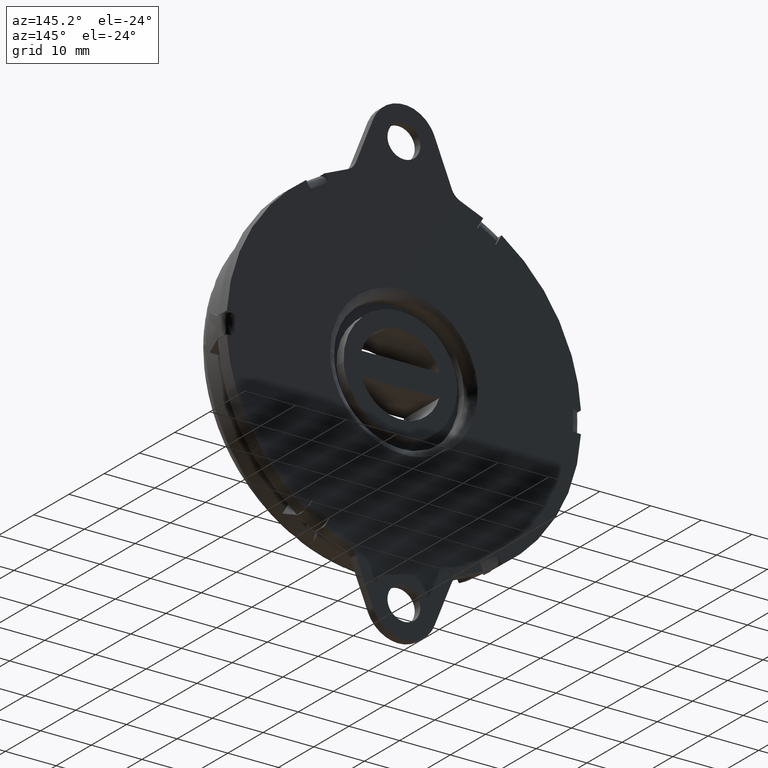
[diagram: clean part render]
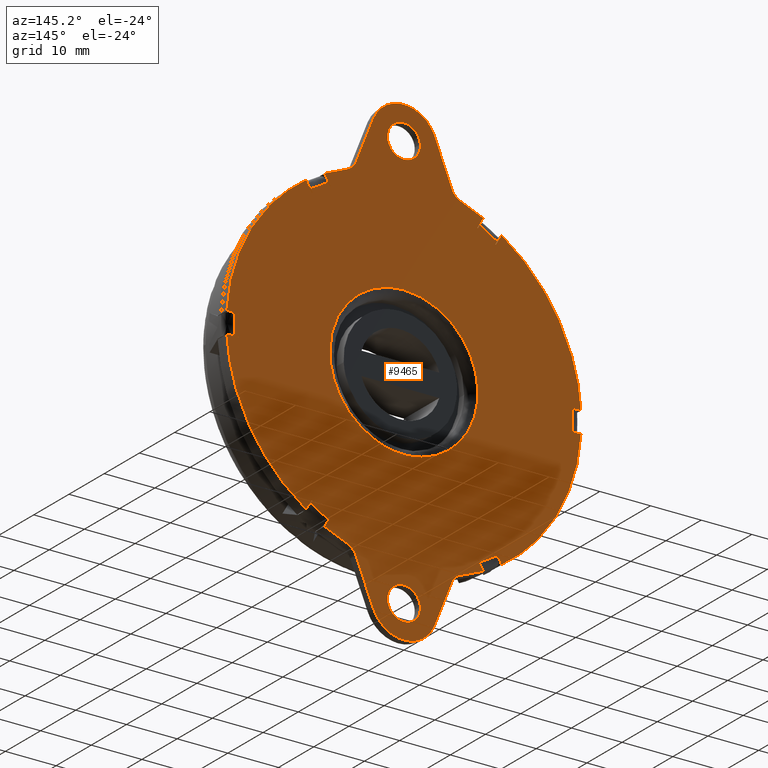
[diagram: same view with one face highlighted and labeled with its STEP entity id]
A machine part, auxiliary view. The second image highlights one B-rep face of the part: STEP entity #9465.
In plain terms, the highlighted face is a freeform B-spline surface patch.
Its self-contained STEP definition (entity closure, byte-faithful):
#2044=CARTESIAN_POINT('',(-3.239981334623022,-3.469447E-018,41.254992061238028));
#2045=VERTEX_POINT('',#2044);
#2051=CARTESIAN_POINT('',(0.0,0.0,44.250000000000007));
#2052=VERTEX_POINT('',#2051);
#2053=CARTESIAN_POINT('',(0.0,0.0,44.250000000000007));
#2054=CARTESIAN_POINT('',(-3.004269097661231,0.0,44.250000000000000));
#2055=CARTESIAN_POINT('',(-3.239981334623022,-3.469447E-018,41.254992061238028));
#2063=(BOUNDED_CURVE()B_SPLINE_CURVE(2,(#2053,#2054,#2055),.UNSPECIFIED.,.F.,.U.)B_SPLINE_CURVE_WITH_KNOTS((3,3),(0.0,0.236331300619801),.UNSPECIFIED.)CURVE()GEOMETRIC_REPRESENTATION_ITEM()RATIONAL_B_SPLINE_CURVE((1.0,0.723120658620388,0.969723356144756))REPRESENTATION_ITEM(''));
#2064=EDGE_CURVE('',#2052,#2045,#2063,.T.);
#2066=CARTESIAN_POINT('',(3.239981334623022,-3.469447E-018,40.745007938761972));
#2067=VERTEX_POINT('',#2066);
#2068=CARTESIAN_POINT('',(3.239981334623022,-3.469447E-018,40.745007938761972));
#2069=CARTESIAN_POINT('',(3.250000000000000,0.0,40.872307152101968));
#2070=CARTESIAN_POINT('',(3.250000000000000,0.0,41.0));
#2071=CARTESIAN_POINT('',(3.250000000000000,0.0,44.250000000000007));
#2072=CARTESIAN_POINT('',(0.0,0.0,44.250000000000007));
#2080=(BOUNDED_CURVE()B_SPLINE_CURVE(2,(#2068,#2069,#2070,#2071,#2072),.UNSPECIFIED.,.F.,.U.)B_SPLINE_CURVE_WITH_KNOTS((3,2,3),(0.736331300619801,0.750000000000000,1.0),.UNSPECIFIED.)CURVE()GEOMETRIC_REPRESENTATION_ITEM()RATIONAL_B_SPLINE_CURVE((0.969723356144756,0.983986122566160,1.0,0.707106781186547,1.0))REPRESENTATION_ITEM(''));
#2081=EDGE_CURVE('',#2067,#2052,#2080,.T.);
#2157=CARTESIAN_POINT('',(0.0,0.0,37.750000000000000));
#2158=VERTEX_POINT('',#2157);
#2159=CARTESIAN_POINT('',(0.0,0.0,37.750000000000000));
#2160=CARTESIAN_POINT('',(3.004269097661238,0.0,37.750000000000000));
#2161=CARTESIAN_POINT('',(3.239981334623022,-3.469447E-018,40.745007938761972));
#2169=(BOUNDED_CURVE()B_SPLINE_CURVE(2,(#2159,#2160,#2161),.UNSPECIFIED.,.F.,.U.)B_SPLINE_CURVE_WITH_KNOTS((3,3),(0.500000000000000,0.736331300619801),.UNSPECIFIED.)CURVE()GEOMETRIC_REPRESENTATION_ITEM()RATIONAL_B_SPLINE_CURVE((1.0,0.723120658620387,0.969723356144756))REPRESENTATION_ITEM(''));
#2170=EDGE_CURVE('',#2158,#2067,#2169,.T.);
#2172=CARTESIAN_POINT('',(-3.239981334623022,-3.469447E-018,41.254992061238028));
#2173=CARTESIAN_POINT('',(-3.250000000000000,0.0,41.127692847898025));
#2174=CARTESIAN_POINT('',(-3.250000000000000,0.0,41.0));
#2175=CARTESIAN_POINT('',(-3.250000000000000,0.0,37.750000000000007));
#2176=CARTESIAN_POINT('',(0.0,0.0,37.750000000000000));
#2184=(BOUNDED_CURVE()B_SPLINE_CURVE(2,(#2172,#2173,#2174,#2175,#2176),.UNSPECIFIED.,.F.,.U.)B_SPLINE_CURVE_WITH_KNOTS((3,2,3),(0.236331300619801,0.250000000000000,0.500000000000000),.UNSPECIFIED.)CURVE()GEOMETRIC_REPRESENTATION_ITEM()RATIONAL_B_SPLINE_CURVE((0.969723356144756,0.983986122566160,1.0,0.707106781186547,1.0))REPRESENTATION_ITEM(''));
#2185=EDGE_CURVE('',#2045,#2158,#2184,.T.);
#2226=CARTESIAN_POINT('',(-3.239981334623022,-3.469447E-018,-40.745007938761972));
#2227=VERTEX_POINT('',#2226);
#2233=CARTESIAN_POINT('',(0.0,0.0,-37.750000000000000));
#2234=VERTEX_POINT('',#2233);
#2235=CARTESIAN_POINT('',(0.0,0.0,-37.750000000000000));
#2236=CARTESIAN_POINT('',(-3.004269097661227,0.0,-37.750000000000007));
#2237=CARTESIAN_POINT('',(-3.239981334623022,-3.469447E-018,-40.745007938761972));
#2245=(BOUNDED_CURVE()B_SPLINE_CURVE(2,(#2235,#2236,#2237),.UNSPECIFIED.,.F.,.U.)B_SPLINE_CURVE_WITH_KNOTS((3,3),(0.0,0.236331300619800),.UNSPECIFIED.)CURVE()GEOMETRIC_REPRESENTATION_ITEM()RATIONAL_B_SPLINE_CURVE((1.0,0.723120658620388,0.969723356144755))REPRESENTATION_ITEM(''));
#2246=EDGE_CURVE('',#2234,#2227,#2245,.T.);
#2248=CARTESIAN_POINT('',(3.239981334623022,-3.469447E-018,-41.254992061238028));
#2249=VERTEX_POINT('',#2248);
#2250=CARTESIAN_POINT('',(3.239981334623022,-3.469447E-018,-41.254992061238035));
#2251=CARTESIAN_POINT('',(3.250000000000000,0.0,-41.127692847898032));
#2252=CARTESIAN_POINT('',(3.250000000000000,0.0,-41.0));
#2253=CARTESIAN_POINT('',(3.250000000000000,0.0,-37.750000000000007));
#2254=CARTESIAN_POINT('',(0.0,0.0,-37.750000000000000));
#2262=(BOUNDED_CURVE()B_SPLINE_CURVE(2,(#2250,#2251,#2252,#2253,#2254),.UNSPECIFIED.,.F.,.U.)B_SPLINE_CURVE_WITH_KNOTS((3,2,3),(0.736331300619801,0.750000000000000,1.0),.UNSPECIFIED.)CURVE()GEOMETRIC_REPRESENTATION_ITEM()RATIONAL_B_SPLINE_CURVE((0.969723356144756,0.983986122566160,1.0,0.707106781186547,1.0))REPRESENTATION_ITEM(''));
#2263=EDGE_CURVE('',#2249,#2234,#2262,.T.);
#2339=CARTESIAN_POINT('',(0.0,0.0,-44.250000000000007));
#2340=VERTEX_POINT('',#2339);
#2341=CARTESIAN_POINT('',(0.0,0.0,-44.250000000000007));
#2342=CARTESIAN_POINT('',(3.004269097661238,0.0,-44.250000000000000));
#2343=CARTESIAN_POINT('',(3.239981334623022,-3.469447E-018,-41.254992061238035));
#2351=(BOUNDED_CURVE()B_SPLINE_CURVE(2,(#2341,#2342,#2343),.UNSPECIFIED.,.F.,.U.)B_SPLINE_CURVE_WITH_KNOTS((3,3),(0.500000000000000,0.736331300619801),.UNSPECIFIED.)CURVE()GEOMETRIC_REPRESENTATION_ITEM()RATIONAL_B_SPLINE_CURVE((1.0,0.723120658620387,0.969723356144756))REPRESENTATION_ITEM(''));
#2352=EDGE_CURVE('',#2340,#2249,#2351,.T.);
#2354=CARTESIAN_POINT('',(-3.239981334623022,-3.469447E-018,-40.745007938761965));
#2355=CARTESIAN_POINT('',(-3.250000000000000,0.0,-40.872307152101975));
#2356=CARTESIAN_POINT('',(-3.250000000000000,0.0,-41.0));
#2357=CARTESIAN_POINT('',(-3.250000000000000,0.0,-44.250000000000007));
#2358=CARTESIAN_POINT('',(0.0,0.0,-44.250000000000007));
#2366=(BOUNDED_CURVE()B_SPLINE_CURVE(2,(#2354,#2355,#2356,#2357,#2358),.UNSPECIFIED.,.F.,.U.)B_SPLINE_CURVE_WITH_KNOTS((3,2,3),(0.236331300619800,0.250000000000000,0.500000000000000),.UNSPECIFIED.)CURVE()GEOMETRIC_REPRESENTATION_ITEM()RATIONAL_B_SPLINE_CURVE((0.969723356144755,0.983986122566159,1.0,0.707106781186547,1.0))REPRESENTATION_ITEM(''));
#2367=EDGE_CURVE('',#2227,#2340,#2366,.T.);
#2476=CARTESIAN_POINT('',(-14.497596722151600,0.0,29.310574110410400));
#2477=VERTEX_POINT('',#2476);
#2483=CARTESIAN_POINT('',(-14.587340000607860,0.0,29.266014028334400));
#2484=VERTEX_POINT('',#2483);
#2485=CARTESIAN_POINT('',(-14.497596722151609,0.0,29.310574110410389));
#2486=CARTESIAN_POINT('',(-14.542502495903378,0.0,29.288362815745987));
#2487=CARTESIAN_POINT('',(-14.587340000607870,0.0,29.266014028334411));
#2495=(BOUNDED_CURVE()B_SPLINE_CURVE(2,(#2485,#2486,#2487),.UNSPECIFIED.,.F.,.U.)CURVE()GEOMETRIC_REPRESENTATION_ITEM()QUASI_UNIFORM_CURVE()RATIONAL_B_SPLINE_CURVE((1.0,0.999998826386876,1.0))REPRESENTATION_ITEM(''));
#2496=EDGE_CURVE('',#2477,#2484,#2495,.T.);
#2640=CARTESIAN_POINT('',(-18.051441615745450,0.0,27.266014028334499));
#2641=VERTEX_POINT('',#2640);
#2647=CARTESIAN_POINT('',(-18.134903418046100,0.0,27.210574110410501));
#2648=VERTEX_POINT('',#2647);
#2649=CARTESIAN_POINT('',(-18.051441615745460,0.0,27.266014028334499));
#2650=CARTESIAN_POINT('',(-18.093214985740161,0.0,27.238358003923729));
#2651=CARTESIAN_POINT('',(-18.134903418046079,0.0,27.210574110410491));
#2659=(BOUNDED_CURVE()B_SPLINE_CURVE(2,(#2649,#2650,#2651),.UNSPECIFIED.,.F.,.U.)CURVE()GEOMETRIC_REPRESENTATION_ITEM()QUASI_UNIFORM_CURVE()RATIONAL_B_SPLINE_CURVE((1.0,0.999998826386876,1.0))REPRESENTATION_ITEM(''));
#2660=EDGE_CURVE('',#2641,#2648,#2659,.T.);
#2684=CARTESIAN_POINT('',(-32.632500140197699,0.0,2.099999999999910));
#2685=VERTEX_POINT('',#2684);
#2691=CARTESIAN_POINT('',(-32.638781616353299,0.0,1.999999999999905));
#2692=VERTEX_POINT('',#2691);
#2693=CARTESIAN_POINT('',(-32.632500140197678,0.0,2.099999999999905));
#2694=CARTESIAN_POINT('',(-32.635717481643226,0.0,2.050004811822229));
#2695=CARTESIAN_POINT('',(-32.638781616353292,0.0,1.999999999999899));
#2703=(BOUNDED_CURVE()B_SPLINE_CURVE(2,(#2693,#2694,#2695),.UNSPECIFIED.,.F.,.U.)CURVE()GEOMETRIC_REPRESENTATION_ITEM()QUASI_UNIFORM_CURVE()RATIONAL_B_SPLINE_CURVE((1.0,0.999998826386876,1.0))REPRESENTATION_ITEM(''));
#2704=EDGE_CURVE('',#2685,#2692,#2703,.T.);
#2848=CARTESIAN_POINT('',(-32.638781616353299,0.0,-1.999999999999885));
#2849=VERTEX_POINT('',#2848);
#2855=CARTESIAN_POINT('',(-32.632500140197699,0.0,-2.099999999999885));
#2856=VERTEX_POINT('',#2855);
#2857=CARTESIAN_POINT('',(-32.638781616353292,0.0,-1.999999999999894));
#2858=CARTESIAN_POINT('',(-32.635717481643226,0.0,-2.050004811822230));
#2859=CARTESIAN_POINT('',(-32.632500140197678,0.0,-2.099999999999901));
#2867=(BOUNDED_CURVE()B_SPLINE_CURVE(2,(#2857,#2858,#2859),.UNSPECIFIED.,.F.,.U.)CURVE()GEOMETRIC_REPRESENTATION_ITEM()QUASI_UNIFORM_CURVE()RATIONAL_B_SPLINE_CURVE((1.0,0.999998826386876,1.0))REPRESENTATION_ITEM(''));
#2868=EDGE_CURVE('',#2849,#2856,#2867,.T.);
#3137=CARTESIAN_POINT('',(-18.134903418046100,0.0,-27.210574110410501));
#3138=VERTEX_POINT('',#3137);
#3144=CARTESIAN_POINT('',(-18.051441615745450,0.0,-27.266014028334549));
#3145=VERTEX_POINT('',#3144);
#3146=CARTESIAN_POINT('',(-18.134903418046090,0.0,-27.210574110410491));
#3147=CARTESIAN_POINT('',(-18.093214985740364,0.0,-27.238358003923590));
#3148=CARTESIAN_POINT('',(-18.051441615745428,0.0,-27.266014028334521));
#3156=(BOUNDED_CURVE()B_SPLINE_CURVE(2,(#3146,#3147,#3148),.UNSPECIFIED.,.F.,.U.)CURVE()GEOMETRIC_REPRESENTATION_ITEM()QUASI_UNIFORM_CURVE()RATIONAL_B_SPLINE_CURVE((1.0,0.999998826386876,1.0))REPRESENTATION_ITEM(''));
#3157=EDGE_CURVE('',#3138,#3145,#3156,.T.);
#3301=CARTESIAN_POINT('',(-14.587340000607860,0.0,-29.266014028334400));
#3302=VERTEX_POINT('',#3301);
#3308=CARTESIAN_POINT('',(-14.497596722151600,0.0,-29.310574110410400));
#3309=VERTEX_POINT('',#3308);
#3310=CARTESIAN_POINT('',(-14.587340000607870,0.0,-29.266014028334411));
#3311=CARTESIAN_POINT('',(-14.542502495903136,0.0,-29.288362815746105));
#3312=CARTESIAN_POINT('',(-14.497596722151600,0.0,-29.310574110410400));
#3320=(BOUNDED_CURVE()B_SPLINE_CURVE(2,(#3310,#3311,#3312),.UNSPECIFIED.,.F.,.U.)CURVE()GEOMETRIC_REPRESENTATION_ITEM()QUASI_UNIFORM_CURVE()RATIONAL_B_SPLINE_CURVE((1.0,0.999998826386876,1.0))REPRESENTATION_ITEM(''));
#3321=EDGE_CURVE('',#3302,#3309,#3320,.T.);
#3345=CARTESIAN_POINT('',(14.497596722151600,0.0,-29.310574110410400));
#3346=VERTEX_POINT('',#3345);
#3352=CARTESIAN_POINT('',(14.587340000607860,0.0,-29.266014028334450));
#3353=VERTEX_POINT('',#3352);
#3354=CARTESIAN_POINT('',(14.497596722151590,0.0,-29.310574110410400));
#3355=CARTESIAN_POINT('',(14.542502495903577,0.0,-29.288362815745884));
#3356=CARTESIAN_POINT('',(14.587340000607840,0.0,-29.266014028334428));
#3364=(BOUNDED_CURVE()B_SPLINE_CURVE(2,(#3354,#3355,#3356),.UNSPECIFIED.,.F.,.U.)CURVE()GEOMETRIC_REPRESENTATION_ITEM()QUASI_UNIFORM_CURVE()RATIONAL_B_SPLINE_CURVE((1.0,0.999998826386876,1.0))REPRESENTATION_ITEM(''));
#3365=EDGE_CURVE('',#3346,#3353,#3364,.T.);
#3509=CARTESIAN_POINT('',(18.051441615745450,0.0,-27.266014028334549));
#3510=VERTEX_POINT('',#3509);
#3516=CARTESIAN_POINT('',(18.134903418046051,0.0,-27.210574110410501));
#3517=VERTEX_POINT('',#3516);
#3518=CARTESIAN_POINT('',(18.051441615745421,0.0,-27.266014028334531));
#3519=CARTESIAN_POINT('',(18.093214985739287,0.0,-27.238358003924304));
#3520=CARTESIAN_POINT('',(18.134903418046040,0.0,-27.210574110410509));
#3528=(BOUNDED_CURVE()B_SPLINE_CURVE(2,(#3518,#3519,#3520),.UNSPECIFIED.,.F.,.U.)CURVE()GEOMETRIC_REPRESENTATION_ITEM()QUASI_UNIFORM_CURVE()RATIONAL_B_SPLINE_CURVE((1.0,0.999998826386876,1.0))REPRESENTATION_ITEM(''));
#3529=EDGE_CURVE('',#3510,#3517,#3528,.T.);
#3553=CARTESIAN_POINT('',(32.632500140197699,0.0,-2.099999999999910));
#3554=VERTEX_POINT('',#3553);
#3560=CARTESIAN_POINT('',(32.638781616353299,0.0,-1.999999999999905));
#3561=VERTEX_POINT('',#3560);
#3562=CARTESIAN_POINT('',(32.632500140197678,0.0,-2.099999999999909));
#3563=CARTESIAN_POINT('',(32.635717481643226,0.0,-2.050004811822254));
#3564=CARTESIAN_POINT('',(32.638781616353292,0.0,-1.999999999999902));
#3572=(BOUNDED_CURVE()B_SPLINE_CURVE(2,(#3562,#3563,#3564),.UNSPECIFIED.,.F.,.U.)CURVE()GEOMETRIC_REPRESENTATION_ITEM()QUASI_UNIFORM_CURVE()RATIONAL_B_SPLINE_CURVE((1.0,0.999998826386876,1.0))REPRESENTATION_ITEM(''));
#3573=EDGE_CURVE('',#3554,#3561,#3572,.T.);
#3717=CARTESIAN_POINT('',(32.638781616353299,0.0,1.999999999999885));
#3718=VERTEX_POINT('',#3717);
#3724=CARTESIAN_POINT('',(32.632500140197699,0.0,2.099999999999885));
#3725=VERTEX_POINT('',#3724);
#3726=CARTESIAN_POINT('',(32.638781616353292,0.0,1.999999999999890));
#3727=CARTESIAN_POINT('',(32.635717481643276,0.0,2.050004811821609));
#3728=CARTESIAN_POINT('',(32.632500140197692,0.0,2.099999999999868));
#3736=(BOUNDED_CURVE()B_SPLINE_CURVE(2,(#3726,#3727,#3728),.UNSPECIFIED.,.F.,.U.)CURVE()GEOMETRIC_REPRESENTATION_ITEM()QUASI_UNIFORM_CURVE()RATIONAL_B_SPLINE_CURVE((1.0,0.999998826386876,1.0))REPRESENTATION_ITEM(''));
#3737=EDGE_CURVE('',#3718,#3725,#3736,.T.);
#3761=CARTESIAN_POINT('',(18.134903418046051,0.0,27.210574110410501));
#3762=VERTEX_POINT('',#3761);
#3768=CARTESIAN_POINT('',(18.051441615745400,0.0,27.266014028334549));
#3769=VERTEX_POINT('',#3768);
#3770=CARTESIAN_POINT('',(18.134903418046068,0.0,27.210574110410501));
#3771=CARTESIAN_POINT('',(18.093214985740044,0.0,27.238358003923800));
#3772=CARTESIAN_POINT('',(18.051441615745400,0.0,27.266014028334549));
#3780=(BOUNDED_CURVE()B_SPLINE_CURVE(2,(#3770,#3771,#3772),.UNSPECIFIED.,.F.,.U.)CURVE()GEOMETRIC_REPRESENTATION_ITEM()QUASI_UNIFORM_CURVE()RATIONAL_B_SPLINE_CURVE((1.0,0.999998826386876,1.0))REPRESENTATION_ITEM(''));
#3781=EDGE_CURVE('',#3762,#3769,#3780,.T.);
#3925=CARTESIAN_POINT('',(14.587340000607840,0.0,29.266014028334450));
#3926=VERTEX_POINT('',#3925);
#3932=CARTESIAN_POINT('',(14.497596722151600,0.0,29.310574110410400));
#3933=VERTEX_POINT('',#3932);
#3934=CARTESIAN_POINT('',(14.587340000607851,0.0,29.266014028334421));
#3935=CARTESIAN_POINT('',(14.542502495902706,0.0,29.288362815746318));
#3936=CARTESIAN_POINT('',(14.497596722151620,0.0,29.310574110410389));
#3944=(BOUNDED_CURVE()B_SPLINE_CURVE(2,(#3934,#3935,#3936),.UNSPECIFIED.,.F.,.U.)CURVE()GEOMETRIC_REPRESENTATION_ITEM()QUASI_UNIFORM_CURVE()RATIONAL_B_SPLINE_CURVE((1.0,0.999998826386876,1.0))REPRESENTATION_ITEM(''));
#3945=EDGE_CURVE('',#3926,#3933,#3944,.T.);
#4549=CARTESIAN_POINT('',(5.158208712719345,-3.168183E-016,-13.658436324283031));
#4550=VERTEX_POINT('',#4549);
#4564=CARTESIAN_POINT('',(0.0,0.0,-14.600000000000000));
#4565=VERTEX_POINT('',#4564);
#4566=CARTESIAN_POINT('',(0.0,0.0,-14.600000000000000));
#4567=CARTESIAN_POINT('',(2.665039436288066,0.0,-14.600000000000003));
#4568=CARTESIAN_POINT('',(5.158208712719346,-3.168183E-016,-13.658436324283024));
#4576=(BOUNDED_CURVE()B_SPLINE_CURVE(2,(#4566,#4567,#4568),.UNSPECIFIED.,.F.,.U.)B_SPLINE_CURVE_WITH_KNOTS((3,3),(0.500000000000000,0.560000000002436),.UNSPECIFIED.)CURVE()GEOMETRIC_REPRESENTATION_ITEM()RATIONAL_B_SPLINE_CURVE((1.0,0.929705627481918,0.893152553773884))REPRESENTATION_ITEM(''));
#4577=EDGE_CURVE('',#4565,#4550,#4576,.T.);
#4579=CARTESIAN_POINT('',(0.0,0.0,14.600000000000000));
#4580=VERTEX_POINT('',#4579);
#4581=CARTESIAN_POINT('',(0.0,0.0,14.600000000000000));
#4582=CARTESIAN_POINT('',(-14.599999999999994,0.0,14.599999999999994));
#4583=CARTESIAN_POINT('',(-14.600000000000000,0.0,-9.985231E-016));
#4584=CARTESIAN_POINT('',(-14.599999999999994,0.0,-14.599999999999994));
#4585=CARTESIAN_POINT('',(0.0,0.0,-14.600000000000000));
#4593=(BOUNDED_CURVE()B_SPLINE_CURVE(2,(#4581,#4582,#4583,#4584,#4585),.UNSPECIFIED.,.F.,.U.)B_SPLINE_CURVE_WITH_KNOTS((3,2,3),(0.0,0.250000000000000,0.500000000000000),.UNSPECIFIED.)CURVE()GEOMETRIC_REPRESENTATION_ITEM()RATIONAL_B_SPLINE_CURVE((1.0,0.707106781186547,1.0,0.707106781186547,1.0))REPRESENTATION_ITEM(''));
#4594=EDGE_CURVE('',#4580,#4565,#4593,.T.);
#4596=CARTESIAN_POINT('',(14.599999999491461,-2.829671E-016,-8.881784E-016));
#4597=VERTEX_POINT('',#4596);
#4598=CARTESIAN_POINT('',(14.599999999491461,-2.829671E-016,-8.881784E-016));
#4599=CARTESIAN_POINT('',(14.599999999999994,0.0,14.599999999999994));
#4600=CARTESIAN_POINT('',(0.0,0.0,14.600000000000000));
#4608=(BOUNDED_CURVE()B_SPLINE_CURVE(2,(#4598,#4599,#4600),.UNSPECIFIED.,.F.,.U.)B_SPLINE_CURVE_WITH_KNOTS((3,3),(0.750000000000000,1.0),.UNSPECIFIED.)CURVE()GEOMETRIC_REPRESENTATION_ITEM()RATIONAL_B_SPLINE_CURVE((1.0,0.707106781186547,1.0))REPRESENTATION_ITEM(''));
#4609=EDGE_CURVE('',#4597,#4580,#4608,.T.);
#4650=CARTESIAN_POINT('',(5.158208712719345,-3.168183E-016,-13.658436324283025));
#4651=CARTESIAN_POINT('',(14.599999999999987,0.0,-10.092674556187211));
#4652=CARTESIAN_POINT('',(14.599999999491464,-2.829671E-016,-8.881784E-016));
#4660=(BOUNDED_CURVE()B_SPLINE_CURVE(2,(#4650,#4651,#4652),.UNSPECIFIED.,.F.,.U.)B_SPLINE_CURVE_WITH_KNOTS((3,3),(0.560000000002437,0.750000000000000),.UNSPECIFIED.)CURVE()GEOMETRIC_REPRESENTATION_ITEM()RATIONAL_B_SPLINE_CURVE((0.893152553773884,0.777401153704631,1.000000000000000))REPRESENTATION_ITEM(''));
#4661=EDGE_CURVE('',#4550,#4597,#4660,.T.);
#4684=CARTESIAN_POINT('',(-14.937982185799560,0.0,29.873344108364201));
#4685=VERTEX_POINT('',#4684);
#4716=CARTESIAN_POINT('',(-18.402083800937351,-5.798029E-012,27.873344108364201));
#4717=VERTEX_POINT('',#4716);
#4718=CARTESIAN_POINT('',(-18.402083800937351,-5.798029E-012,27.873344108364201));
#4719=CARTESIAN_POINT('',(-16.730020877039561,0.0,28.977246170721088));
#4720=CARTESIAN_POINT('',(-14.937982185799560,0.0,29.873344108364151));
#4728=(BOUNDED_CURVE()B_SPLINE_CURVE(2,(#4718,#4719,#4720),.UNSPECIFIED.,.F.,.U.)CURVE()GEOMETRIC_REPRESENTATION_ITEM()QUASI_UNIFORM_CURVE()RATIONAL_B_SPLINE_CURVE((1.0,0.998205568465190,1.0))REPRESENTATION_ITEM(''));
#4729=EDGE_CURVE('',#4717,#4685,#4728,.T.);
#4794=CARTESIAN_POINT('',(-33.340065986737351,0.0,2.000000000000315));
#4795=VERTEX_POINT('',#4794);
#4826=CARTESIAN_POINT('',(-33.340065986737351,-5.798029E-012,-1.999999999999685));
#4827=VERTEX_POINT('',#4826);
#4828=CARTESIAN_POINT('',(-33.340065986737351,-5.798029E-012,-1.999999999999685));
#4829=CARTESIAN_POINT('',(-33.460041754079583,0.0,2.641116E-013));
#4830=CARTESIAN_POINT('',(-33.340065986737322,0.0,2.000000000000303));
#4838=(BOUNDED_CURVE()B_SPLINE_CURVE(2,(#4828,#4829,#4830),.UNSPECIFIED.,.F.,.U.)CURVE()GEOMETRIC_REPRESENTATION_ITEM()QUASI_UNIFORM_CURVE()RATIONAL_B_SPLINE_CURVE((1.0,0.998205568465190,1.0))REPRESENTATION_ITEM(''));
#4839=EDGE_CURVE('',#4827,#4795,#4838,.T.);
#4904=CARTESIAN_POINT('',(-18.402083800937799,0.0,-27.873344108363849));
#4905=VERTEX_POINT('',#4904);
#4936=CARTESIAN_POINT('',(-14.937982185800060,-5.798029E-012,-29.873344108363948));
#4937=VERTEX_POINT('',#4936);
#4938=CARTESIAN_POINT('',(-14.937982185800060,-5.798029E-012,-29.873344108363948));
#4939=CARTESIAN_POINT('',(-16.730020877040044,0.0,-28.977246170720811));
#4940=CARTESIAN_POINT('',(-18.402083800937799,0.0,-27.873344108363870));
#4948=(BOUNDED_CURVE()B_SPLINE_CURVE(2,(#4938,#4939,#4940),.UNSPECIFIED.,.F.,.U.)CURVE()GEOMETRIC_REPRESENTATION_ITEM()QUASI_UNIFORM_CURVE()RATIONAL_B_SPLINE_CURVE((1.0,0.998205568465190,1.0))REPRESENTATION_ITEM(''));
#4949=EDGE_CURVE('',#4937,#4905,#4948,.T.);
#5014=CARTESIAN_POINT('',(14.937982185799560,0.0,-29.873344108364201));
#5015=VERTEX_POINT('',#5014);
#5046=CARTESIAN_POINT('',(18.402083800937351,-5.798029E-012,-27.873344108364201));
#5047=VERTEX_POINT('',#5046);
#5048=CARTESIAN_POINT('',(18.402083800937351,-5.798029E-012,-27.873344108364201));
#5049=CARTESIAN_POINT('',(16.730020877039571,0.0,-28.977246170721084));
#5050=CARTESIAN_POINT('',(14.937982185799539,0.0,-29.873344108364162));
#5058=(BOUNDED_CURVE()B_SPLINE_CURVE(2,(#5048,#5049,#5050),.UNSPECIFIED.,.F.,.U.)CURVE()GEOMETRIC_REPRESENTATION_ITEM()QUASI_UNIFORM_CURVE()RATIONAL_B_SPLINE_CURVE((1.0,0.998205568465190,1.0))REPRESENTATION_ITEM(''));
#5059=EDGE_CURVE('',#5047,#5015,#5058,.T.);
#5124=CARTESIAN_POINT('',(33.340065986737351,0.0,-2.000000000000315));
#5125=VERTEX_POINT('',#5124);
#5156=CARTESIAN_POINT('',(33.340065986737351,-5.798029E-012,1.999999999999685));
#5157=VERTEX_POINT('',#5156);
#5158=CARTESIAN_POINT('',(33.340065986737351,-5.798029E-012,1.999999999999685));
#5159=CARTESIAN_POINT('',(33.460041754079583,0.0,-2.788568E-013));
#5160=CARTESIAN_POINT('',(33.340065986737322,0.0,-2.000000000000314));
#5168=(BOUNDED_CURVE()B_SPLINE_CURVE(2,(#5158,#5159,#5160),.UNSPECIFIED.,.F.,.U.)CURVE()GEOMETRIC_REPRESENTATION_ITEM()QUASI_UNIFORM_CURVE()RATIONAL_B_SPLINE_CURVE((1.0,0.998205568465190,1.0))REPRESENTATION_ITEM(''));
#5169=EDGE_CURVE('',#5157,#5125,#5168,.T.);
#5234=CARTESIAN_POINT('',(18.402083800937849,0.0,27.873344108363948));
#5235=VERTEX_POINT('',#5234);
#5266=CARTESIAN_POINT('',(14.937982185800060,-5.798029E-012,29.873344108363948));
#5267=VERTEX_POINT('',#5266);
#5268=CARTESIAN_POINT('',(14.937982185800060,-5.798029E-012,29.873344108363948));
#5269=CARTESIAN_POINT('',(16.730020877040040,0.0,28.977246170720811));
#5270=CARTESIAN_POINT('',(18.402083800937849,0.0,27.873344108363948));
#5278=(BOUNDED_CURVE()B_SPLINE_CURVE(2,(#5268,#5269,#5270),.UNSPECIFIED.,.F.,.U.)CURVE()GEOMETRIC_REPRESENTATION_ITEM()QUASI_UNIFORM_CURVE()RATIONAL_B_SPLINE_CURVE((1.0,0.998205568465189,1.0))REPRESENTATION_ITEM(''));
#5279=EDGE_CURVE('',#5267,#5235,#5278,.T.);
#6512=CARTESIAN_POINT('',(18.051441615745400,0.0,27.266014028334549));
#6513=CARTESIAN_POINT('',(18.402083800937849,0.0,27.873344108363948));
#6514=QUASI_UNIFORM_CURVE('',1,(#6512,#6513),.UNSPECIFIED.,.F.,.U.);
#6515=EDGE_CURVE('',#3769,#5235,#6514,.T.);
#6539=CARTESIAN_POINT('',(14.587340000607840,0.0,29.266014028334450));
#6540=CARTESIAN_POINT('',(14.937982185800060,-5.798029E-012,29.873344108363948));
#6541=QUASI_UNIFORM_CURVE('',1,(#6539,#6540),.UNSPECIFIED.,.F.,.U.);
#6542=EDGE_CURVE('',#3926,#5267,#6541,.T.);
#6734=CARTESIAN_POINT('',(-14.587340000607860,0.0,29.266014028334400));
#6735=CARTESIAN_POINT('',(-14.937982185799560,0.0,29.873344108364201));
#6736=QUASI_UNIFORM_CURVE('',1,(#6734,#6735),.UNSPECIFIED.,.F.,.U.);
#6737=EDGE_CURVE('',#2484,#4685,#6736,.T.);
#6761=CARTESIAN_POINT('',(-18.051441615745450,0.0,27.266014028334499));
#6762=CARTESIAN_POINT('',(-18.402083800937351,-5.798029E-012,27.873344108364201));
#6763=QUASI_UNIFORM_CURVE('',1,(#6761,#6762),.UNSPECIFIED.,.F.,.U.);
#6764=EDGE_CURVE('',#2641,#4717,#6763,.T.);
#6956=CARTESIAN_POINT('',(-32.638781616353299,0.0,1.999999999999905));
#6957=CARTESIAN_POINT('',(-33.340065986737351,0.0,2.000000000000315));
#6958=QUASI_UNIFORM_CURVE('',1,(#6956,#6957),.UNSPECIFIED.,.F.,.U.);
#6959=EDGE_CURVE('',#2692,#4795,#6958,.T.);
#6983=CARTESIAN_POINT('',(-32.638781616353299,0.0,-1.999999999999885));
#6984=CARTESIAN_POINT('',(-33.340065986737351,-5.798029E-012,-1.999999999999685));
#6985=QUASI_UNIFORM_CURVE('',1,(#6983,#6984),.UNSPECIFIED.,.F.,.U.);
#6986=EDGE_CURVE('',#2849,#4827,#6985,.T.);
#7178=CARTESIAN_POINT('',(-18.051441615745450,0.0,-27.266014028334549));
#7179=CARTESIAN_POINT('',(-18.402083800937799,0.0,-27.873344108363849));
#7180=QUASI_UNIFORM_CURVE('',1,(#7178,#7179),.UNSPECIFIED.,.F.,.U.);
#7181=EDGE_CURVE('',#3145,#4905,#7180,.T.);
#7205=CARTESIAN_POINT('',(-14.587340000607860,0.0,-29.266014028334400));
#7206=CARTESIAN_POINT('',(-14.937982185800060,-5.798029E-012,-29.873344108363948));
#7207=QUASI_UNIFORM_CURVE('',1,(#7205,#7206),.UNSPECIFIED.,.F.,.U.);
#7208=EDGE_CURVE('',#3302,#4937,#7207,.T.);
#7580=CARTESIAN_POINT('',(14.587340000607860,0.0,-29.266014028334450));
#7581=CARTESIAN_POINT('',(14.937982185799560,0.0,-29.873344108364201));
#7582=QUASI_UNIFORM_CURVE('',1,(#7580,#7581),.UNSPECIFIED.,.F.,.U.);
#7583=EDGE_CURVE('',#3353,#5015,#7582,.T.);
#7607=CARTESIAN_POINT('',(18.051441615745450,0.0,-27.266014028334549));
#7608=CARTESIAN_POINT('',(18.402083800937351,-5.798029E-012,-27.873344108364201));
#7609=QUASI_UNIFORM_CURVE('',1,(#7607,#7608),.UNSPECIFIED.,.F.,.U.);
#7610=EDGE_CURVE('',#3510,#5047,#7609,.T.);
#7918=CARTESIAN_POINT('',(32.638781616353299,0.0,-1.999999999999905));
#7919=CARTESIAN_POINT('',(33.340065986737351,0.0,-2.000000000000315));
#7920=QUASI_UNIFORM_CURVE('',1,(#7918,#7919),.UNSPECIFIED.,.F.,.U.);
#7921=EDGE_CURVE('',#3561,#5125,#7920,.T.);
#7945=CARTESIAN_POINT('',(32.638781616353299,0.0,1.999999999999885));
#7946=CARTESIAN_POINT('',(33.340065986737351,-5.798029E-012,1.999999999999685));
#7947=QUASI_UNIFORM_CURVE('',1,(#7945,#7946),.UNSPECIFIED.,.F.,.U.);
#7948=EDGE_CURVE('',#3718,#5157,#7947,.T.);
#8172=CARTESIAN_POINT('',(11.290251355783001,0.0,-33.128993711298243));
#8173=VERTEX_POINT('',#8172);
#8174=CARTESIAN_POINT('',(9.472363982807911,0.0,-34.854947957250602));
#8175=VERTEX_POINT('',#8174);
#8176=CARTESIAN_POINT('',(11.290251355783001,0.0,-33.128993711298243));
#8177=CARTESIAN_POINT('',(9.984478149512315,0.0,-33.574001503755248));
#8178=CARTESIAN_POINT('',(9.472363982807911,0.0,-34.854947957250602));
#8186=(BOUNDED_CURVE()B_SPLINE_CURVE(2,(#8176,#8177,#8178),.UNSPECIFIED.,.F.,.U.)CURVE()GEOMETRIC_REPRESENTATION_ITEM()QUASI_UNIFORM_CURVE()RATIONAL_B_SPLINE_CURVE((1.0,0.908545628248372,1.0))REPRESENTATION_ITEM(''));
#8187=EDGE_CURVE('',#8173,#8175,#8186,.T.);
#8234=CARTESIAN_POINT('',(11.290254169504321,0.0,33.129001967603003));
#8235=VERTEX_POINT('',#8234);
#8241=CARTESIAN_POINT('',(9.472363982797681,0.0,34.854947957276202));
#8242=VERTEX_POINT('',#8241);
#8243=CARTESIAN_POINT('',(9.472363982797667,0.0,34.854947957276202));
#8244=CARTESIAN_POINT('',(9.984479556357163,0.0,33.574005631913032));
#8245=CARTESIAN_POINT('',(11.290254169504321,0.0,33.129001967603003));
#8253=(BOUNDED_CURVE()B_SPLINE_CURVE(2,(#8243,#8244,#8245),.UNSPECIFIED.,.F.,.U.)CURVE()GEOMETRIC_REPRESENTATION_ITEM()QUASI_UNIFORM_CURVE()RATIONAL_B_SPLINE_CURVE((1.0,0.908545628246452,1.0))REPRESENTATION_ITEM(''));
#8254=EDGE_CURVE('',#8242,#8235,#8253,.T.);
#8269=CARTESIAN_POINT('',(6.031800044424820,0.0,43.422299889377697));
#8270=VERTEX_POINT('',#8269);
#8271=CARTESIAN_POINT('',(6.031800044424820,0.0,43.422299889377697));
#8272=CARTESIAN_POINT('',(9.472363982797681,0.0,34.854947957276202));
#8273=QUASI_UNIFORM_CURVE('',1,(#8271,#8272),.UNSPECIFIED.,.F.,.U.);
#8274=EDGE_CURVE('',#8270,#8242,#8273,.T.);
#8310=CARTESIAN_POINT('',(-6.031800177699279,0.0,43.422299557510847));
#8311=VERTEX_POINT('',#8310);
#8312=CARTESIAN_POINT('',(6.031800044424830,0.0,43.422299889377697));
#8313=CARTESIAN_POINT('',(4.394234192149004,0.0,47.500004364497521));
#8314=CARTESIAN_POINT('',(-0.000000178813932,0.0,47.500004243613148));
#8315=CARTESIAN_POINT('',(-4.394234549776870,0.0,47.500004122728768));
#8316=CARTESIAN_POINT('',(-6.031800177699280,0.0,43.422299557510847));
#8324=(BOUNDED_CURVE()B_SPLINE_CURVE(2,(#8312,#8313,#8314,#8315,#8316),.UNSPECIFIED.,.F.,.U.)B_SPLINE_CURVE_WITH_KNOTS((3,2,3),(0.0,0.500000000000000,1.0),.UNSPECIFIED.)CURVE()GEOMETRIC_REPRESENTATION_ITEM()RATIONAL_B_SPLINE_CURVE((1.0,0.828451072032001,1.0,0.828451072032001,1.0))REPRESENTATION_ITEM(''));
#8325=EDGE_CURVE('',#8270,#8311,#8324,.T.);
#8358=CARTESIAN_POINT('',(-9.472363982797670,0.0,34.854947957276202));
#8359=VERTEX_POINT('',#8358);
#8360=CARTESIAN_POINT('',(-9.472363982797670,0.0,34.854947957276202));
#8361=CARTESIAN_POINT('',(-6.031800177699279,0.0,43.422299557510847));
#8362=QUASI_UNIFORM_CURVE('',1,(#8360,#8361),.UNSPECIFIED.,.F.,.U.);
#8363=EDGE_CURVE('',#8359,#8311,#8362,.T.);
#8396=CARTESIAN_POINT('',(-11.290251355783001,0.0,33.128993711298300));
#8397=VERTEX_POINT('',#8396);
#8398=CARTESIAN_POINT('',(-11.290251355783001,0.0,33.128993711298300));
#8399=CARTESIAN_POINT('',(-9.984478149496507,0.0,33.574001503760691));
#8400=CARTESIAN_POINT('',(-9.472363982797670,0.0,34.854947957276202));
#8408=(BOUNDED_CURVE()B_SPLINE_CURVE(2,(#8398,#8399,#8400),.UNSPECIFIED.,.F.,.U.)CURVE()GEOMETRIC_REPRESENTATION_ITEM()QUASI_UNIFORM_CURVE()RATIONAL_B_SPLINE_CURVE((1.0,0.908545628246453,1.0))REPRESENTATION_ITEM(''));
#8409=EDGE_CURVE('',#8397,#8359,#8408,.T.);
#8448=CARTESIAN_POINT('',(-9.474059972795500,0.0,-34.850640067741999));
#8449=VERTEX_POINT('',#8448);
#8450=CARTESIAN_POINT('',(-11.290250197106420,0.0,-33.128994282436452));
#8451=VERTEX_POINT('',#8450);
#8452=CARTESIAN_POINT('',(-9.474059972795500,0.0,-34.850640067741999));
#8453=CARTESIAN_POINT('',(-9.987113592334321,0.0,-33.573081281190419));
#8454=CARTESIAN_POINT('',(-11.290250197106420,0.0,-33.128994282436452));
#8462=(BOUNDED_CURVE()B_SPLINE_CURVE(2,(#8452,#8453,#8454),.UNSPECIFIED.,.F.,.U.)CURVE()GEOMETRIC_REPRESENTATION_ITEM()QUASI_UNIFORM_CURVE()RATIONAL_B_SPLINE_CURVE((1.0,0.908865516714194,1.0))REPRESENTATION_ITEM(''));
#8463=EDGE_CURVE('',#8449,#8451,#8462,.T.);
#8486=CARTESIAN_POINT('',(-6.037214864569360,0.0,-43.408741721111362));
#8487=VERTEX_POINT('',#8486);
#8488=CARTESIAN_POINT('',(-6.037214864569360,0.0,-43.408741721111362));
#8489=CARTESIAN_POINT('',(-9.474059972795500,0.0,-34.850640067741999));
#8490=QUASI_UNIFORM_CURVE('',1,(#8488,#8489),.UNSPECIFIED.,.F.,.U.);
#8491=EDGE_CURVE('',#8487,#8449,#8490,.T.);
#8517=CARTESIAN_POINT('',(-3.164118E-015,0.0,-47.500000000000000));
#8518=VERTEX_POINT('',#8517);
#8519=CARTESIAN_POINT('',(-6.037214864569380,0.0,-43.408741721111362));
#8520=CARTESIAN_POINT('',(-4.404875328993776,0.0,-47.500000000000000));
#8521=CARTESIAN_POINT('',(0.0,0.0,-47.500000000000000));
#8529=(BOUNDED_CURVE()B_SPLINE_CURVE(2,(#8519,#8520,#8521),.UNSPECIFIED.,.F.,.U.)CURVE()GEOMETRIC_REPRESENTATION_ITEM()QUASI_UNIFORM_CURVE()RATIONAL_B_SPLINE_CURVE((1.0,0.827821130861537,1.0))REPRESENTATION_ITEM(''));
#8530=EDGE_CURVE('',#8487,#8518,#8529,.T.);
#8556=CARTESIAN_POINT('',(6.031800000000001,0.0,-43.422300000000000));
#8557=VERTEX_POINT('',#8556);
#8558=CARTESIAN_POINT('',(-2.766128E-015,0.0,-47.499999999999922));
#8559=CARTESIAN_POINT('',(4.394234208330353,0.0,-47.500004324204085));
#8560=CARTESIAN_POINT('',(6.031799999999979,0.0,-43.422299999999993));
#8568=(BOUNDED_CURVE()B_SPLINE_CURVE(2,(#8558,#8559,#8560),.UNSPECIFIED.,.F.,.U.)CURVE()GEOMETRIC_REPRESENTATION_ITEM()QUASI_UNIFORM_CURVE()RATIONAL_B_SPLINE_CURVE((1.0,0.828450804167562,1.0))REPRESENTATION_ITEM(''));
#8569=EDGE_CURVE('',#8518,#8557,#8568,.T.);
#8586=CARTESIAN_POINT('',(9.472363982807911,0.0,-34.854947957250602));
#8587=CARTESIAN_POINT('',(6.031800000000001,0.0,-43.422300000000000));
#8588=QUASI_UNIFORM_CURVE('',1,(#8586,#8587),.UNSPECIFIED.,.F.,.U.);
#8589=EDGE_CURVE('',#8175,#8557,#8588,.T.);
#9211=CARTESIAN_POINT('',(-38.427143687731864,0.0,52.245254271453078));
#9212=CARTESIAN_POINT('',(38.427145561895543,0.0,52.245254271453078));
#9213=CARTESIAN_POINT('',(-38.427143687731864,0.0,-52.245252575938707));
#9214=CARTESIAN_POINT('',(38.427145561895543,0.0,-52.245252575938707));
#9215=B_SPLINE_SURFACE_WITH_KNOTS('',1,1,((#9211,#9213),(#9212,#9214)),.UNSPECIFIED.,.F.,.F.,.U.,(2,2),(2,2),(0.0,76.854289249627385),(0.0,104.490506847391800),.UNSPECIFIED.);
#9216=ORIENTED_EDGE('',*,*,#6542,.T.);
#9217=ORIENTED_EDGE('',*,*,#5279,.T.);
#9218=ORIENTED_EDGE('',*,*,#6515,.F.);
#9219=ORIENTED_EDGE('',*,*,#3781,.F.);
#9220=CARTESIAN_POINT('',(19.287124946802098,0.0,29.206280339790698));
#9221=VERTEX_POINT('',#9220);
#9222=CARTESIAN_POINT('',(18.134903418046051,0.0,27.210574110410501));
#9223=CARTESIAN_POINT('',(19.287124946802098,0.0,29.206280339790698));
#9224=QUASI_UNIFORM_CURVE('',1,(#9222,#9223),.UNSPECIFIED.,.F.,.U.);
#9225=EDGE_CURVE('',#3762,#9221,#9224,.T.);
#9226=ORIENTED_EDGE('',*,*,#9225,.T.);
#9227=CARTESIAN_POINT('',(34.936943197709802,0.0,2.099999999999885));
#9228=VERTEX_POINT('',#9227);
#9229=CARTESIAN_POINT('',(34.936943197709802,0.0,2.099999999999891));
#9230=CARTESIAN_POINT('',(33.887166029352528,0.0,19.564764429120228));
#9231=CARTESIAN_POINT('',(19.287124946802120,0.0,29.206280339790681));
#9239=(BOUNDED_CURVE()B_SPLINE_CURVE(2,(#9229,#9230,#9231),.UNSPECIFIED.,.F.,.U.)CURVE()GEOMETRIC_REPRESENTATION_ITEM()QUASI_UNIFORM_CURVE()RATIONAL_B_SPLINE_CURVE((1.0,0.894465152565445,1.0))REPRESENTATION_ITEM(''));
#9240=EDGE_CURVE('',#9228,#9221,#9239,.T.);
#9241=ORIENTED_EDGE('',*,*,#9240,.F.);
#9242=CARTESIAN_POINT('',(34.936943197709802,0.0,2.099999999999885));
#9243=CARTESIAN_POINT('',(32.632500140197699,0.0,2.099999999999885));
#9244=QUASI_UNIFORM_CURVE('',1,(#9242,#9243),.UNSPECIFIED.,.F.,.U.);
#9245=EDGE_CURVE('',#9228,#3725,#9244,.T.);
#9246=ORIENTED_EDGE('',*,*,#9245,.T.);
#9247=ORIENTED_EDGE('',*,*,#3737,.F.);
#9248=ORIENTED_EDGE('',*,*,#7948,.T.);
#9249=ORIENTED_EDGE('',*,*,#5169,.T.);
#9250=ORIENTED_EDGE('',*,*,#7921,.F.);
#9251=ORIENTED_EDGE('',*,*,#3573,.F.);
#9252=CARTESIAN_POINT('',(34.936943197709802,0.0,-2.099999999999885));
#9253=VERTEX_POINT('',#9252);
#9254=CARTESIAN_POINT('',(32.632500140197699,0.0,-2.099999999999910));
#9255=CARTESIAN_POINT('',(34.936943197709802,0.0,-2.099999999999885));
#9256=QUASI_UNIFORM_CURVE('',1,(#9254,#9255),.UNSPECIFIED.,.F.,.U.);
#9257=EDGE_CURVE('',#3554,#9253,#9256,.T.);
#9258=ORIENTED_EDGE('',*,*,#9257,.T.);
#9259=CARTESIAN_POINT('',(19.287124946802098,0.0,-29.206280339790649));
#9260=VERTEX_POINT('',#9259);
#9261=CARTESIAN_POINT('',(19.287124946802109,0.0,-29.206280339790691));
#9262=CARTESIAN_POINT('',(33.887166029352507,0.0,-19.564764429120242));
#9263=CARTESIAN_POINT('',(34.936943197709802,0.0,-2.099999999999904));
#9271=(BOUNDED_CURVE()B_SPLINE_CURVE(2,(#9261,#9262,#9263),.UNSPECIFIED.,.F.,.U.)CURVE()GEOMETRIC_REPRESENTATION_ITEM()QUASI_UNIFORM_CURVE()RATIONAL_B_SPLINE_CURVE((1.0,0.894465152565445,1.0))REPRESENTATION_ITEM(''));
#9272=EDGE_CURVE('',#9260,#9253,#9271,.T.);
#9273=ORIENTED_EDGE('',*,*,#9272,.F.);
#9274=CARTESIAN_POINT('',(19.287124946802098,0.0,-29.206280339790649));
#9275=CARTESIAN_POINT('',(18.134903418046051,0.0,-27.210574110410501));
#9276=QUASI_UNIFORM_CURVE('',1,(#9274,#9275),.UNSPECIFIED.,.F.,.U.);
#9277=EDGE_CURVE('',#9260,#3517,#9276,.T.);
#9278=ORIENTED_EDGE('',*,*,#9277,.T.);
#9279=ORIENTED_EDGE('',*,*,#3529,.F.);
#9280=ORIENTED_EDGE('',*,*,#7610,.T.);
#9281=ORIENTED_EDGE('',*,*,#5059,.T.);
#9282=ORIENTED_EDGE('',*,*,#7583,.F.);
#9283=ORIENTED_EDGE('',*,*,#3365,.F.);
#9284=CARTESIAN_POINT('',(15.649818250907650,0.0,-31.306280339790550));
#9285=VERTEX_POINT('',#9284);
#9286=CARTESIAN_POINT('',(14.497596722151600,0.0,-29.310574110410400));
#9287=CARTESIAN_POINT('',(15.649818250907650,0.0,-31.306280339790550));
#9288=QUASI_UNIFORM_CURVE('',1,(#9286,#9287),.UNSPECIFIED.,.F.,.U.);
#9289=EDGE_CURVE('',#3346,#9285,#9288,.T.);
#9290=ORIENTED_EDGE('',*,*,#9289,.T.);
#9291=CARTESIAN_POINT('',(11.290251355782990,0.0,-33.128993711298271));
#9292=CARTESIAN_POINT('',(13.531695446453840,0.0,-32.365116987358483));
#9293=CARTESIAN_POINT('',(15.649818250907661,0.0,-31.306280339790579));
#9301=(BOUNDED_CURVE()B_SPLINE_CURVE(2,(#9291,#9292,#9293),.UNSPECIFIED.,.F.,.U.)CURVE()GEOMETRIC_REPRESENTATION_ITEM()QUASI_UNIFORM_CURVE()RATIONAL_B_SPLINE_CURVE((1.0,0.997719020244480,1.0))REPRESENTATION_ITEM(''));
#9302=EDGE_CURVE('',#8173,#9285,#9301,.T.);
#9303=ORIENTED_EDGE('',*,*,#9302,.F.);
#9304=ORIENTED_EDGE('',*,*,#8187,.T.);
#9305=ORIENTED_EDGE('',*,*,#8589,.T.);
#9306=ORIENTED_EDGE('',*,*,#8569,.F.);
#9307=ORIENTED_EDGE('',*,*,#8530,.F.);
#9308=ORIENTED_EDGE('',*,*,#8491,.T.);
#9309=ORIENTED_EDGE('',*,*,#8463,.T.);
#9310=CARTESIAN_POINT('',(-15.649818250907650,0.0,-31.306280339790550));
#9311=VERTEX_POINT('',#9310);
#9312=CARTESIAN_POINT('',(-15.649818250907661,0.0,-31.306280339790568));
#9313=CARTESIAN_POINT('',(-13.531694870938137,0.0,-32.365117275055276));
#9314=CARTESIAN_POINT('',(-11.290250197106420,0.0,-33.128994282436452));
#9322=(BOUNDED_CURVE()B_SPLINE_CURVE(2,(#9312,#9313,#9314),.UNSPECIFIED.,.F.,.U.)CURVE()GEOMETRIC_REPRESENTATION_ITEM()QUASI_UNIFORM_CURVE()RATIONAL_B_SPLINE_CURVE((1.0,0.997719019009186,1.0))REPRESENTATION_ITEM(''));
#9323=EDGE_CURVE('',#9311,#8451,#9322,.T.);
#9324=ORIENTED_EDGE('',*,*,#9323,.F.);
#9325=CARTESIAN_POINT('',(-15.649818250907650,0.0,-31.306280339790550));
#9326=CARTESIAN_POINT('',(-14.497596722151600,0.0,-29.310574110410400));
#9327=QUASI_UNIFORM_CURVE('',1,(#9325,#9326),.UNSPECIFIED.,.F.,.U.);
#9328=EDGE_CURVE('',#9311,#3309,#9327,.T.);
#9329=ORIENTED_EDGE('',*,*,#9328,.T.);
#9330=ORIENTED_EDGE('',*,*,#3321,.F.);
#9331=ORIENTED_EDGE('',*,*,#7208,.T.);
#9332=ORIENTED_EDGE('',*,*,#4949,.T.);
#9333=ORIENTED_EDGE('',*,*,#7181,.F.);
#9334=ORIENTED_EDGE('',*,*,#3157,.F.);
#9335=CARTESIAN_POINT('',(-19.287124946802098,0.0,-29.206280339790649));
#9336=VERTEX_POINT('',#9335);
#9337=CARTESIAN_POINT('',(-18.134903418046100,0.0,-27.210574110410501));
#9338=CARTESIAN_POINT('',(-19.287124946802098,0.0,-29.206280339790649));
#9339=QUASI_UNIFORM_CURVE('',1,(#9337,#9338),.UNSPECIFIED.,.F.,.U.);
#9340=EDGE_CURVE('',#3138,#9336,#9339,.T.);
#9341=ORIENTED_EDGE('',*,*,#9340,.T.);
#9342=CARTESIAN_POINT('',(-34.936943197709802,0.0,-2.099999999999885));
#9343=VERTEX_POINT('',#9342);
#9344=CARTESIAN_POINT('',(-34.936943197709802,0.0,-2.099999999999895));
#9345=CARTESIAN_POINT('',(-33.887166029352521,0.0,-19.564764429120228));
#9346=CARTESIAN_POINT('',(-19.287124946802120,0.0,-29.206280339790681));
#9354=(BOUNDED_CURVE()B_SPLINE_CURVE(2,(#9344,#9345,#9346),.UNSPECIFIED.,.F.,.U.)CURVE()GEOMETRIC_REPRESENTATION_ITEM()QUASI_UNIFORM_CURVE()RATIONAL_B_SPLINE_CURVE((1.0,0.894465152565445,1.0))REPRESENTATION_ITEM(''));
#9355=EDGE_CURVE('',#9343,#9336,#9354,.T.);
#9356=ORIENTED_EDGE('',*,*,#9355,.F.);
#9357=CARTESIAN_POINT('',(-34.936943197709802,0.0,-2.099999999999885));
#9358=CARTESIAN_POINT('',(-32.632500140197699,0.0,-2.099999999999885));
#9359=QUASI_UNIFORM_CURVE('',1,(#9357,#9358),.UNSPECIFIED.,.F.,.U.);
#9360=EDGE_CURVE('',#9343,#2856,#9359,.T.);
#9361=ORIENTED_EDGE('',*,*,#9360,.T.);
#9362=ORIENTED_EDGE('',*,*,#2868,.F.);
#9363=ORIENTED_EDGE('',*,*,#6986,.T.);
#9364=ORIENTED_EDGE('',*,*,#4839,.T.);
#9365=ORIENTED_EDGE('',*,*,#6959,.F.);
#9366=ORIENTED_EDGE('',*,*,#2704,.F.);
#9367=CARTESIAN_POINT('',(-34.936943197709802,0.0,2.099999999999885));
#9368=VERTEX_POINT('',#9367);
#9369=CARTESIAN_POINT('',(-32.632500140197699,0.0,2.099999999999910));
#9370=CARTESIAN_POINT('',(-34.936943197709802,0.0,2.099999999999885));
#9371=QUASI_UNIFORM_CURVE('',1,(#9369,#9370),.UNSPECIFIED.,.F.,.U.);
#9372=EDGE_CURVE('',#2685,#9368,#9371,.T.);
#9373=ORIENTED_EDGE('',*,*,#9372,.T.);
#9374=CARTESIAN_POINT('',(-19.287124946802152,0.0,29.206280339790649));
#9375=VERTEX_POINT('',#9374);
#9376=CARTESIAN_POINT('',(-19.287124946802159,0.0,29.206280339790649));
#9377=CARTESIAN_POINT('',(-33.887166029352514,0.0,19.564764429120199));
#9378=CARTESIAN_POINT('',(-34.936943197709802,0.0,2.099999999999900));
#9386=(BOUNDED_CURVE()B_SPLINE_CURVE(2,(#9376,#9377,#9378),.UNSPECIFIED.,.F.,.U.)CURVE()GEOMETRIC_REPRESENTATION_ITEM()QUASI_UNIFORM_CURVE()RATIONAL_B_SPLINE_CURVE((1.0,0.894465152565445,1.0))REPRESENTATION_ITEM(''));
#9387=EDGE_CURVE('',#9375,#9368,#9386,.T.);
#9388=ORIENTED_EDGE('',*,*,#9387,.F.);
#9389=CARTESIAN_POINT('',(-19.287124946802152,0.0,29.206280339790649));
#9390=CARTESIAN_POINT('',(-18.134903418046100,0.0,27.210574110410501));
#9391=QUASI_UNIFORM_CURVE('',1,(#9389,#9390),.UNSPECIFIED.,.F.,.U.);
#9392=EDGE_CURVE('',#9375,#2648,#9391,.T.);
#9393=ORIENTED_EDGE('',*,*,#9392,.T.);
#9394=ORIENTED_EDGE('',*,*,#2660,.F.);
#9395=ORIENTED_EDGE('',*,*,#6764,.T.);
#9396=ORIENTED_EDGE('',*,*,#4729,.T.);
#9397=ORIENTED_EDGE('',*,*,#6737,.F.);
#9398=ORIENTED_EDGE('',*,*,#2496,.F.);
#9399=CARTESIAN_POINT('',(-15.649818250907700,0.0,31.306280339790550));
#9400=VERTEX_POINT('',#9399);
#9401=CARTESIAN_POINT('',(-14.497596722151600,0.0,29.310574110410400));
#9402=CARTESIAN_POINT('',(-15.649818250907700,0.0,31.306280339790550));
#9403=QUASI_UNIFORM_CURVE('',1,(#9401,#9402),.UNSPECIFIED.,.F.,.U.);
#9404=EDGE_CURVE('',#2477,#9400,#9403,.T.);
#9405=ORIENTED_EDGE('',*,*,#9404,.T.);
#9406=CARTESIAN_POINT('',(-11.290251355783001,0.0,33.128993711298271));
#9407=CARTESIAN_POINT('',(-13.531695446453840,0.0,32.365116987358483));
#9408=CARTESIAN_POINT('',(-15.649818250907700,0.0,31.306280339790550));
#9416=(BOUNDED_CURVE()B_SPLINE_CURVE(2,(#9406,#9407,#9408),.UNSPECIFIED.,.F.,.U.)CURVE()GEOMETRIC_REPRESENTATION_ITEM()QUASI_UNIFORM_CURVE()RATIONAL_B_SPLINE_CURVE((1.0,0.997719020244480,1.0))REPRESENTATION_ITEM(''));
#9417=EDGE_CURVE('',#8397,#9400,#9416,.T.);
#9418=ORIENTED_EDGE('',*,*,#9417,.F.);
#9419=ORIENTED_EDGE('',*,*,#8409,.T.);
#9420=ORIENTED_EDGE('',*,*,#8363,.T.);
#9421=ORIENTED_EDGE('',*,*,#8325,.F.);
#9422=ORIENTED_EDGE('',*,*,#8274,.T.);
#9423=ORIENTED_EDGE('',*,*,#8254,.T.);
#9424=CARTESIAN_POINT('',(15.649818250907650,0.0,31.306280339790550));
#9425=VERTEX_POINT('',#9424);
#9426=CARTESIAN_POINT('',(15.649818250907650,0.0,31.306280339790550));
#9427=CARTESIAN_POINT('',(13.531696853314513,0.0,32.365121115510838));
#9428=CARTESIAN_POINT('',(11.290254169504321,0.0,33.129001967603003));
#9436=(BOUNDED_CURVE()B_SPLINE_CURVE(2,(#9426,#9427,#9428),.UNSPECIFIED.,.F.,.U.)CURVE()GEOMETRIC_REPRESENTATION_ITEM()QUASI_UNIFORM_CURVE()RATIONAL_B_SPLINE_CURVE((1.0,0.997719020244479,1.0))REPRESENTATION_ITEM(''));
#9437=EDGE_CURVE('',#9425,#8235,#9436,.T.);
#9438=ORIENTED_EDGE('',*,*,#9437,.F.);
#9439=CARTESIAN_POINT('',(15.649818250907650,0.0,31.306280339790550));
#9440=CARTESIAN_POINT('',(14.497596722151600,0.0,29.310574110410400));
#9441=QUASI_UNIFORM_CURVE('',1,(#9439,#9440),.UNSPECIFIED.,.F.,.U.);
#9442=EDGE_CURVE('',#9425,#3933,#9441,.T.);
#9443=ORIENTED_EDGE('',*,*,#9442,.T.);
#9444=ORIENTED_EDGE('',*,*,#3945,.F.);
#9445=EDGE_LOOP('',(#9216,#9217,#9218,#9219,#9226,#9241,#9246,#9247,#9248,#9249,#9250,#9251,#9258,#9273,#9278,#9279,#9280,#9281,#9282,#9283,#9290,#9303,#9304,#9305,#9306,#9307,#9308,#9309,#9324,#9329,#9330,#9331,#9332,#9333,#9334,#9341,#9356,#9361,#9362,#9363,#9364,#9365,#9366,#9373,#9388,#9393,#9394,#9395,#9396,#9397,#9398,#9405,#9418,#9419,#9420,#9421,#9422,#9423,#9438,#9443,#9444));
#9446=FACE_OUTER_BOUND('',#9445,.T.);
#9447=ORIENTED_EDGE('',*,*,#4594,.T.);
#9448=ORIENTED_EDGE('',*,*,#4577,.T.);
#9449=ORIENTED_EDGE('',*,*,#4661,.T.);
#9450=ORIENTED_EDGE('',*,*,#4609,.T.);
#9451=EDGE_LOOP('',(#9447,#9448,#9449,#9450));
#9452=FACE_BOUND('',#9451,.T.);
#9453=ORIENTED_EDGE('',*,*,#2352,.T.);
#9454=ORIENTED_EDGE('',*,*,#2263,.T.);
#9455=ORIENTED_EDGE('',*,*,#2246,.T.);
#9456=ORIENTED_EDGE('',*,*,#2367,.T.);
#9457=EDGE_LOOP('',(#9453,#9454,#9455,#9456));
#9458=FACE_BOUND('',#9457,.T.);
#9459=ORIENTED_EDGE('',*,*,#2170,.T.);
#9460=ORIENTED_EDGE('',*,*,#2081,.T.);
#9461=ORIENTED_EDGE('',*,*,#2064,.T.);
#9462=ORIENTED_EDGE('',*,*,#2185,.T.);
#9463=EDGE_LOOP('',(#9459,#9460,#9461,#9462));
#9464=FACE_BOUND('',#9463,.T.);
#9465=ADVANCED_FACE('',(#9446,#9452,#9458,#9464),#9215,.T.);